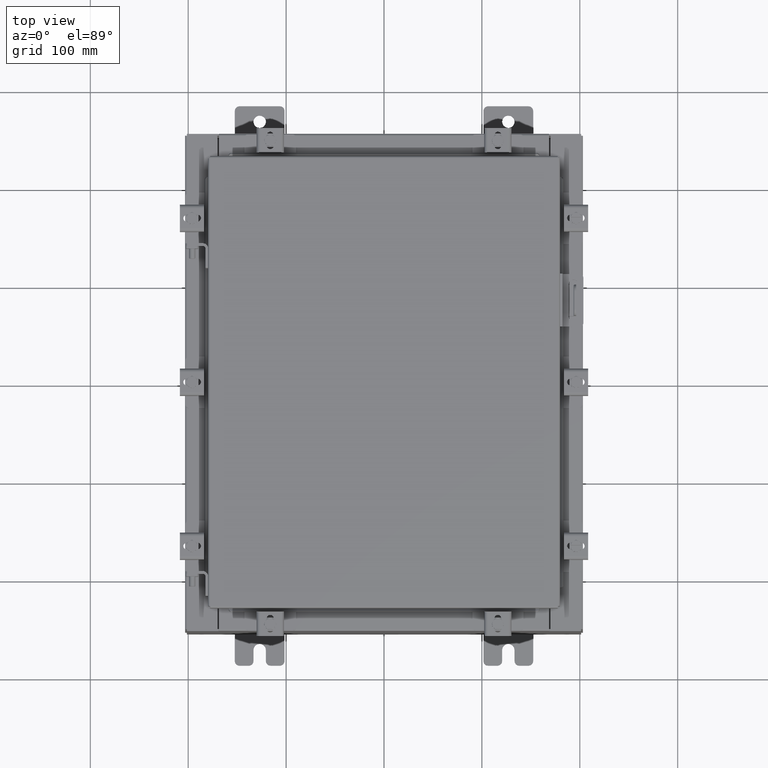
[diagram: clean part render]
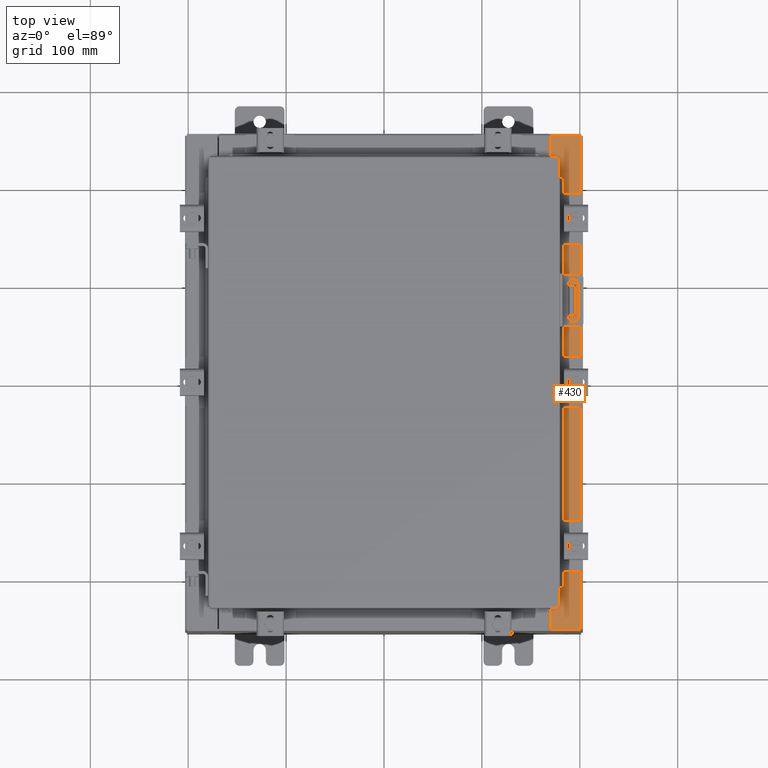
[diagram: same view with one face highlighted and labeled with its STEP entity id]
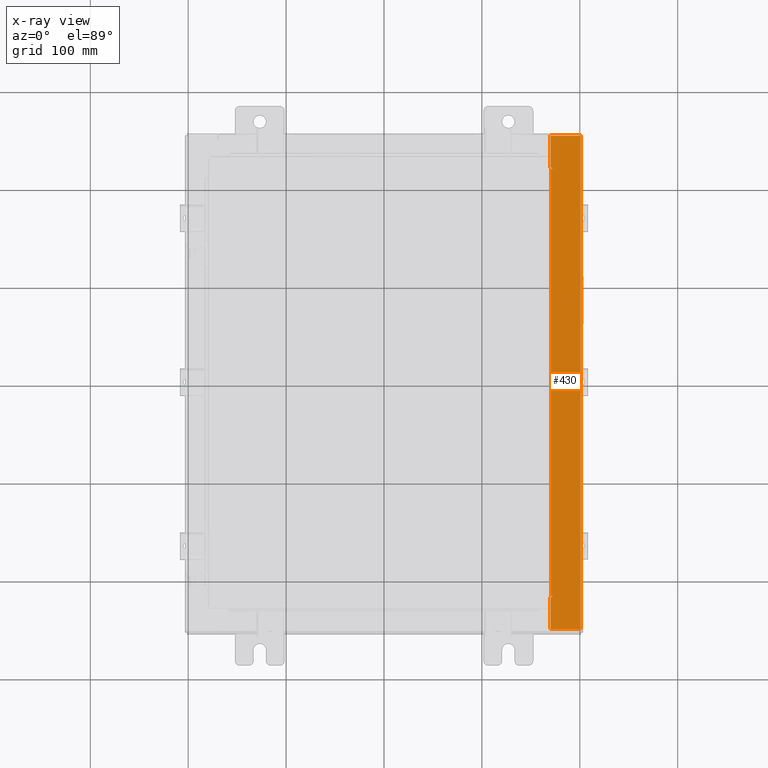
[diagram: x-ray of the same camera — body ghosted, the highlighted face saturated]
A machine part, top view. The second image highlights one B-rep face of the part: STEP entity #430.
The next image is the same camera in x-ray: the body ghosted, the highlighted face saturated — about 0% of this face is hidden behind the body in this view.
In plain terms, the highlighted planar face has unit normal (-0, 0, -1).
Its self-contained STEP definition (entity closure, byte-faithful):
#239 = CARTESIAN_POINT ( 'NONE',  ( 5.679009539018269400E-014, 0.0000000000000000000, 7.925300000000056900 ) ) ;
#310 = DIRECTION ( 'NONE',  ( -1.000000000000000000, 0.0000000000000000000, 0.0000000000000000000 ) ) ;
#352 = LINE ( 'NONE', #13649, #13696 ) ;
#430 = ADVANCED_FACE ( 'NONE', ( #15929 ), #6318, .F. ) ;
#707 = EDGE_CURVE ( 'NONE', #15438, #7881, #3950, .T. ) ;
#1030 = VERTEX_POINT ( 'NONE', #11522 ) ;
#1273 = VERTEX_POINT ( 'NONE', #15989 ) ;
#1315 = VERTEX_POINT ( 'NONE', #9772 ) ;
#1482 = VECTOR ( 'NONE', #17739, 39.37007874015748100 ) ;
#1550 = LINE ( 'NONE', #15977, #6768 ) ;
#1873 = ORIENTED_EDGE ( 'NONE', *, *, #13494, .T. ) ;
#1920 = CARTESIAN_POINT ( 'NONE',  ( 6.712700000000032800, -8.593750000000005300, 7.925300000000008900 ) ) ;
#1964 = CARTESIAN_POINT ( 'NONE',  ( 6.750050000000032700, 8.612424999999992900, 7.925300000000008900 ) ) ;
#2062 = CARTESIAN_POINT ( 'NONE',  ( 6.699700000000030200, 7.376124450909251200E-016, 7.925300000000008900 ) ) ;
#2178 = LINE ( 'NONE', #7859, #20159 ) ;
#2452 = ORIENTED_EDGE ( 'NONE', *, *, #12111, .F. ) ;
#2610 = EDGE_LOOP ( 'NONE', ( #11561, #18744, #1873, #16509, #18621, #11430, #2452, #13707, #5527, #21424, #2667, #8891 ) ) ;
#2667 = ORIENTED_EDGE ( 'NONE', *, *, #9702, .F. ) ;
#2802 = LINE ( 'NONE', #15487, #17791 ) ;
#3020 = CARTESIAN_POINT ( 'NONE',  ( 6.750050000000032700, -8.612425000000005300, 7.925300000000008900 ) ) ;
#3276 = VERTEX_POINT ( 'NONE', #18493 ) ;
#3719 = DIRECTION ( 'NONE',  ( 1.000000000000000000, 0.0000000000000000000, 0.0000000000000000000 ) ) ;
#3950 = LINE ( 'NONE', #2062, #21359 ) ;
#4619 = VECTOR ( 'NONE', #21445, 39.37007874015748100 ) ;
#4767 = DIRECTION ( 'NONE',  ( 1.000000000000000000, 0.0000000000000000000, 0.0000000000000000000 ) ) ;
#5063 = DIRECTION ( 'NONE',  ( 1.000000000000000000, 0.0000000000000000000, -7.132762385546378400E-015 ) ) ;
#5329 = VERTEX_POINT ( 'NONE', #1920 ) ;
#5365 = EDGE_CURVE ( 'NONE', #11080, #6835, #17996, .T. ) ;
#5493 = AXIS2_PLACEMENT_3D ( 'NONE', #239, #16440, #21330 ) ;
#5527 = ORIENTED_EDGE ( 'NONE', *, *, #5365, .F. ) ;
#5802 = DIRECTION ( 'NONE',  ( -0.0000000000000000000, 1.000000000000000000, -0.0000000000000000000 ) ) ;
#6318 = PLANE ( 'NONE',  #5493 ) ;
#6768 = VECTOR ( 'NONE', #310, 39.37007874015748100 ) ;
#6835 = VERTEX_POINT ( 'NONE', #18265 ) ;
#7859 = CARTESIAN_POINT ( 'NONE',  ( 6.699700000000030200, 7.376124450909251200E-016, 7.925300000000008900 ) ) ;
#7881 = VERTEX_POINT ( 'NONE', #18385 ) ;
#7993 = AXIS2_PLACEMENT_3D ( 'NONE', #3020, #15190, #4767 ) ;
#8890 = EDGE_CURVE ( 'NONE', #5329, #11080, #14266, .T. ) ;
#8891 = ORIENTED_EDGE ( 'NONE', *, *, #19876, .F. ) ;
#9022 = CARTESIAN_POINT ( 'NONE',  ( 6.750050000000032700, 8.631099999999994700, 7.925300000000008900 ) ) ;
#9702 = EDGE_CURVE ( 'NONE', #1273, #5329, #1550, .T. ) ;
#9772 = CARTESIAN_POINT ( 'NONE',  ( 6.699700000000031100, -9.925300000000001800, 7.925300000000008900 ) ) ;
#10732 = CARTESIAN_POINT ( 'NONE',  ( 6.712700000000032800, 8.593749999999994700, 7.925300000000008900 ) ) ;
#11020 = CARTESIAN_POINT ( 'NONE',  ( 7.912300000000029400, -9.925300000000001800, 7.925300000000000000 ) ) ;
#11080 = VERTEX_POINT ( 'NONE', #19042 ) ;
#11430 = ORIENTED_EDGE ( 'NONE', *, *, #707, .T. ) ;
#11522 = CARTESIAN_POINT ( 'NONE',  ( 7.912300000000029400, -9.925300000000001800, 7.925300000000000000 ) ) ;
#11561 = ORIENTED_EDGE ( 'NONE', *, *, #12473, .F. ) ;
#11690 = EDGE_CURVE ( 'NONE', #6835, #3276, #13988, .T. ) ;
#11895 = DIRECTION ( 'NONE',  ( -1.000000000000000000, 0.0000000000000000000, 7.132762385546378400E-015 ) ) ;
#12111 = EDGE_CURVE ( 'NONE', #3276, #7881, #15372, .T. ) ;
#12473 = EDGE_CURVE ( 'NONE', #15711, #21939, #18616, .T. ) ;
#13292 = EDGE_CURVE ( 'NONE', #16740, #15438, #352, .T. ) ;
#13353 = VECTOR ( 'NONE', #15983, 39.37007874015748100 ) ;
#13354 = CARTESIAN_POINT ( 'NONE',  ( 6.750050000000032700, -8.631100000000005300, 7.925300000000008900 ) ) ;
#13494 = EDGE_CURVE ( 'NONE', #1315, #1030, #2802, .T. ) ;
#13649 = CARTESIAN_POINT ( 'NONE',  ( 5.679009539018269400E-014, 9.925299999999996500, 7.925300000000056900 ) ) ;
#13696 = VECTOR ( 'NONE', #11895, 39.37007874015748100 ) ;
#13707 = ORIENTED_EDGE ( 'NONE', *, *, #11690, .F. ) ;
#13988 = CIRCLE ( 'NONE', #16496, 0.01867499999999949400 ) ;
#13992 = VECTOR ( 'NONE', #16802, 39.37007874015748100 ) ;
#14137 = DIRECTION ( 'NONE',  ( 7.132762385546378400E-015, 0.0000000000000000000, 1.000000000000000000 ) ) ;
#14266 = LINE ( 'NONE', #17980, #21125 ) ;
#14398 = CARTESIAN_POINT ( 'NONE',  ( 7.912300000000029400, 9.925299999999991100, 7.925300000000000000 ) ) ;
#14776 = DIRECTION ( 'NONE',  ( 1.100963394019027800E-016, -1.000000000000000000, -7.852910284722398000E-031 ) ) ;
#15044 = CARTESIAN_POINT ( 'NONE',  ( 6.699700000000031100, -8.631100000000005300, 7.925300000000008900 ) ) ;
#15190 = DIRECTION ( 'NONE',  ( 7.132762385546378400E-015, 0.0000000000000000000, 1.000000000000000000 ) ) ;
#15372 = LINE ( 'NONE', #9022, #1482 ) ;
#15438 = VERTEX_POINT ( 'NONE', #16047 ) ;
#15487 = CARTESIAN_POINT ( 'NONE',  ( 5.679009539018269400E-014, -9.925300000000001800, 7.925300000000056900 ) ) ;
#15546 = EDGE_CURVE ( 'NONE', #15711, #1315, #2178, .T. ) ;
#15711 = VERTEX_POINT ( 'NONE', #20287 ) ;
#15929 = FACE_OUTER_BOUND ( 'NONE', #2610, .T. ) ;
#15977 = CARTESIAN_POINT ( 'NONE',  ( 6.750050000000032700, -8.593750000000005300, 7.925300000000008900 ) ) ;
#15983 = DIRECTION ( 'NONE',  ( 1.000000000000000000, 0.0000000000000000000, 0.0000000000000000000 ) ) ;
#15989 = CARTESIAN_POINT ( 'NONE',  ( 6.750050000000032700, -8.593750000000005300, 7.925300000000008900 ) ) ;
#16047 = CARTESIAN_POINT ( 'NONE',  ( 6.699700000000029300, 9.925299999999992900, 7.925300000000008900 ) ) ;
#16440 = DIRECTION ( 'NONE',  ( -7.132762385546378400E-015, 0.0000000000000000000, -1.000000000000000000 ) ) ;
#16496 = AXIS2_PLACEMENT_3D ( 'NONE', #1964, #14137, #3719 ) ;
#16509 = ORIENTED_EDGE ( 'NONE', *, *, #17445, .F. ) ;
#16740 = VERTEX_POINT ( 'NONE', #14398 ) ;
#16802 = DIRECTION ( 'NONE',  ( 1.000000000000000000, 2.170286390199955400E-014, 0.0000000000000000000 ) ) ;
#17445 = EDGE_CURVE ( 'NONE', #16740, #1030, #21488, .T. ) ;
#17739 = DIRECTION ( 'NONE',  ( -1.000000000000000000, 2.170286390199861100E-014, 0.0000000000000000000 ) ) ;
#17791 = VECTOR ( 'NONE', #5063, 39.37007874015748100 ) ;
#17980 = CARTESIAN_POINT ( 'NONE',  ( 6.712700000000032800, -8.593750000000005300, 7.925300000000008900 ) ) ;
#17996 = LINE ( 'NONE', #10732, #13353 ) ;
#18265 = CARTESIAN_POINT ( 'NONE',  ( 6.750050000000032700, 8.593749999999992900, 7.925300000000008900 ) ) ;
#18385 = CARTESIAN_POINT ( 'NONE',  ( 6.699700000000029300, 8.631099999999994700, 7.925300000000008900 ) ) ;
#18493 = CARTESIAN_POINT ( 'NONE',  ( 6.750050000000032700, 8.631099999999994700, 7.925300000000008900 ) ) ;
#18616 = LINE ( 'NONE', #15044, #13992 ) ;
#18621 = ORIENTED_EDGE ( 'NONE', *, *, #13292, .T. ) ;
#18744 = ORIENTED_EDGE ( 'NONE', *, *, #15546, .T. ) ;
#19042 = CARTESIAN_POINT ( 'NONE',  ( 6.712700000000032800, 8.593749999999994700, 7.925300000000008900 ) ) ;
#19876 = EDGE_CURVE ( 'NONE', #21939, #1273, #21641, .T. ) ;
#19998 = DIRECTION ( 'NONE',  ( 1.100963394019027800E-016, -1.000000000000000000, -7.852910284722398000E-031 ) ) ;
#20159 = VECTOR ( 'NONE', #19998, 39.37007874015748100 ) ;
#20287 = CARTESIAN_POINT ( 'NONE',  ( 6.699700000000031100, -8.631100000000005300, 7.925300000000008900 ) ) ;
#21125 = VECTOR ( 'NONE', #5802, 39.37007874015748100 ) ;
#21330 = DIRECTION ( 'NONE',  ( -1.000000000000000000, 0.0000000000000000000, 7.132762385546378400E-015 ) ) ;
#21359 = VECTOR ( 'NONE', #14776, 39.37007874015748100 ) ;
#21424 = ORIENTED_EDGE ( 'NONE', *, *, #8890, .F. ) ;
#21445 = DIRECTION ( 'NONE',  ( -0.0000000000000000000, -1.000000000000000000, -0.0000000000000000000 ) ) ;
#21488 = LINE ( 'NONE', #11020, #4619 ) ;
#21641 = CIRCLE ( 'NONE', #7993, 0.01867499999999949400 ) ;
#21939 = VERTEX_POINT ( 'NONE', #13354 ) ;